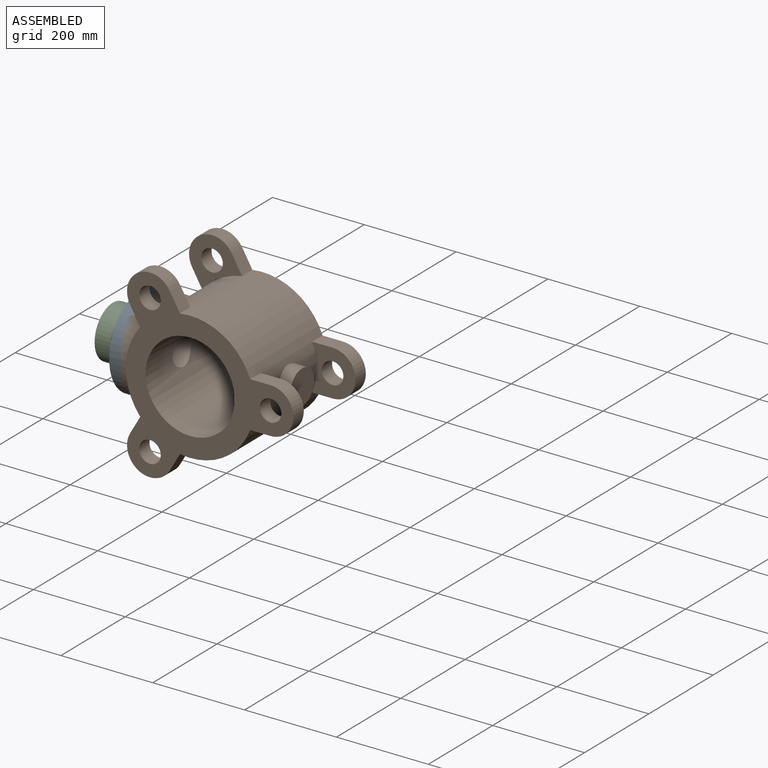
[diagram: assembled view]
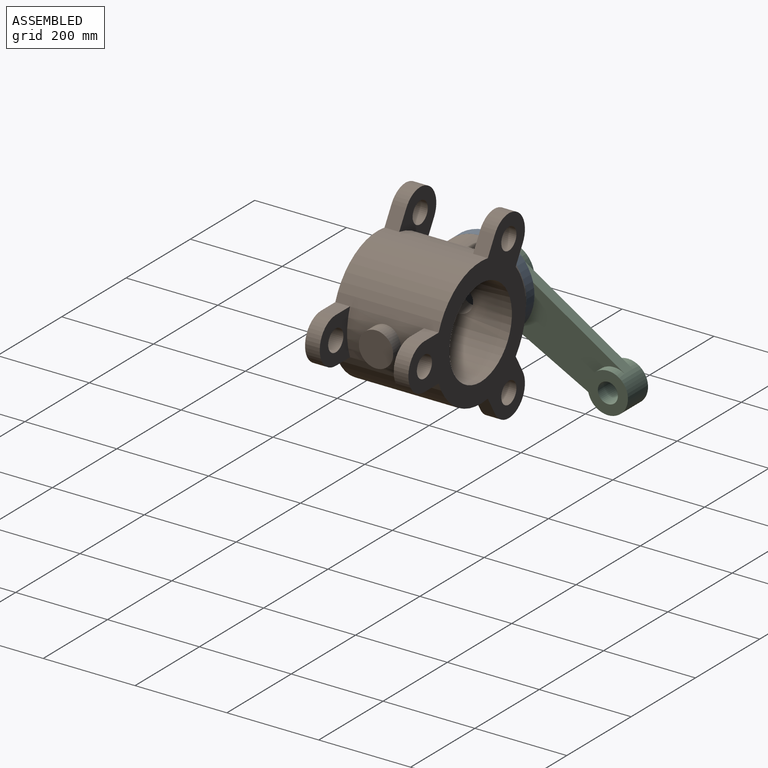
[diagram: assembled view, second angle]
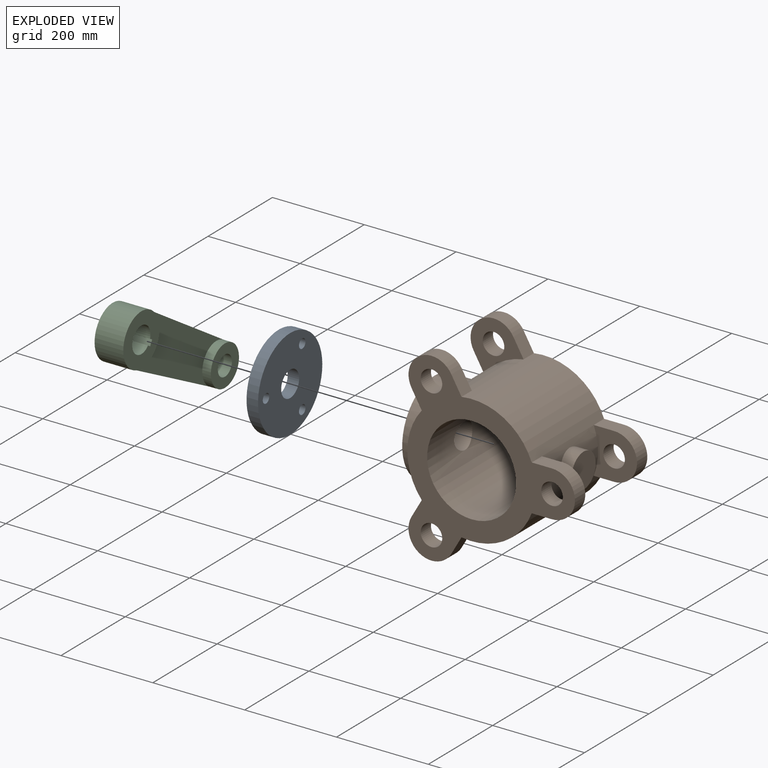
[diagram: exploded view]
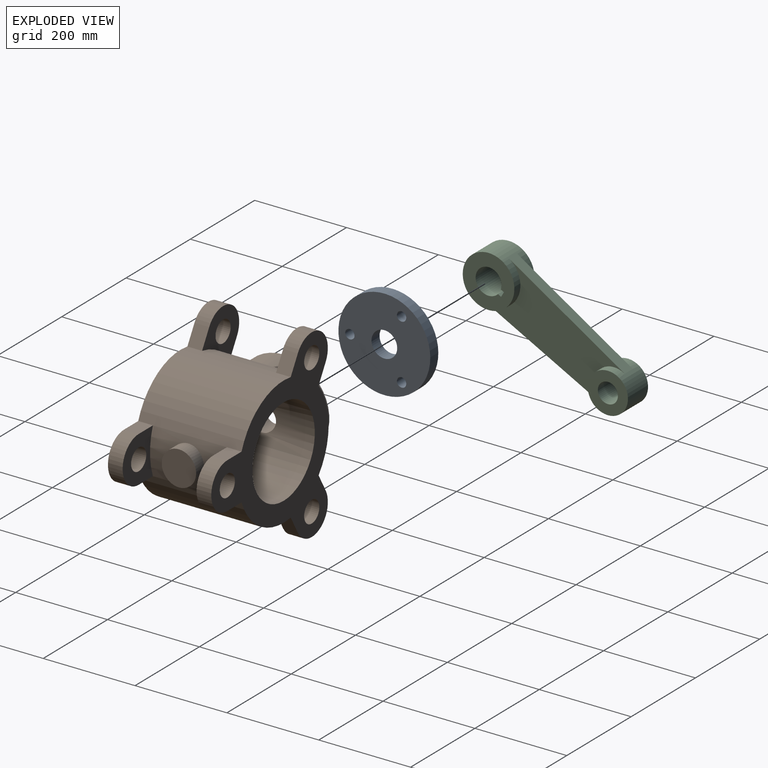
[diagram: exploded view, second angle]
ASSEMBLY  parts=3 mates=5
PART A: 7 faces, bbox 200x200x25 mm
  f0: cylinder r=28mm len=56mm, axis (0,0,-1), area 4398.2mm2, adj f5,f6
  f1: cylinder r=10.15mm len=25mm, axis (0,0,-1), area 1594.4mm2, adj f5,f6
  f2: cylinder r=10.15mm len=25mm, axis (0,0,-1), area 1594.4mm2, adj f5,f6
  f3: cylinder r=10.15mm len=25mm, axis (0,0,-1), area 1594.4mm2, adj f5,f6
  f4: cylinder r=100mm len=200mm, axis (0,0,-1), area 15708mm2, adj f5,f6
  f5: plane 200x200mm, normal (0,0,1), area 27982mm2, adj f0,f1,f2,f3,f4
  f6: plane 200x200mm, normal (0,0,-1), area 27982mm2, adj f0,f1,f2,f3,f4
PART B: 49 faces, bbox 385x225x403.1 mm
  f0: cylinder r=140mm len=280mm, axis (0,1,0), area 139899.5mm2, adj f2,f3,f4,f6,f7,f8,f10,f11
  f1: cylinder r=97mm len=225mm, axis (0,1,0), area 132109mm2, adj f2,f3,f46,f47
  f2: plane 403.11x365mm, normal (0,-1,0), area 50002.9mm2, adj f0,f1,f4,f5,f6,f8,f9,f10
  f3: plane 403.11x365mm, normal (0,1,0), area 50002.9mm2, adj f0,f1,f16,f17,f18,f20,f21,f22
  f4: plane 44.23x32mm, normal (0,0,-1), area 1415.5mm2, adj f0,f2,f5,f7
  f5: cylinder r=50mm len=100mm, axis (0,-1,0), area 5026.5mm2, adj f2,f4,f6,f7
  f6: plane 44.23x32mm, normal (0,0,1), area 1415.5mm2, adj f0,f2,f5,f7
  f7: plane 100x94.23mm, normal (0,1,0), area 5995.6mm2, adj f0,f4,f5,f6,f33
  f8: plane 38.31x32mm, normal (0.87,0,0.5), area 1415.5mm2, adj f0,f2,f9,f11
  f9: cylinder r=50mm len=93.3mm, axis (0,-1,0), area 5026.5mm2, adj f2,f8,f10,f11
  f10: plane 38.31x32mm, normal (-0.87,0,-0.5), area 1415.5mm2, adj f0,f2,f9,f11
  f11: plane 115.42x113.31mm, normal (0,1,0), area 5995.6mm2, adj f0,f8,f9,f10,f29
  f12: plane 38.31x32mm, normal (-0.87,0,0.5), area 1415.5mm2, adj f0,f2,f13,f15
  f13: cylinder r=50mm len=93.3mm, axis (0,-1,0), area 5026.5mm2, adj f2,f12,f14,f15
  f14: plane 38.31x32mm, normal (0.87,0,-0.5), area 1415.5mm2, adj f0,f2,f13,f15
  f15: plane 115.42x113.31mm, normal (0,1,0), area 5995.6mm2, adj f0,f12,f13,f14,f31
  f16: plane 44.23x32mm, normal (0,0,-1), area 1415.5mm2, adj f0,f3,f18,f19
  f17: plane 44.23x32mm, normal (0,0,1), area 1415.5mm2, adj f0,f3,f18,f19
  f18: cylinder r=50mm len=100mm, axis (0,1,0), area 5026.5mm2, adj f3,f16,f17,f19
  f19: plane 100x94.23mm, normal (0,-1,0), area 5995.6mm2, adj f0,f16,f17,f18,f32
  f20: plane 38.31x32mm, normal (0.87,0,0.5), area 1415.5mm2, adj f0,f3,f22,f23
  f21: plane 38.31x32mm, normal (-0.87,0,-0.5), area 1415.5mm2, adj f0,f3,f22,f23
  f22: cylinder r=50mm len=93.3mm, axis (0,1,0), area 5026.5mm2, adj f3,f20,f21,f23
  f23: plane 115.42x113.31mm, normal (0,-1,0), area 5995.6mm2, adj f0,f20,f21,f22,f28
  f24: plane 38.31x32mm, normal (-0.87,0,0.5), area 1415.5mm2, adj f0,f3,f26,f27
  f25: plane 38.31x32mm, normal (0.87,0,-0.5), area 1415.5mm2, adj f0,f3,f26,f27
  f26: cylinder r=50mm len=93.3mm, axis (0,1,0), area 5026.5mm2, adj f3,f24,f25,f27
  f27: plane 115.42x113.31mm, normal (0,-1,0), area 5995.6mm2, adj f0,f24,f25,f26,f30
  f28: cylinder r=23.5mm len=47mm, axis (0,-1,0), area 4725mm2, adj f3,f23
  f29: cylinder r=23.5mm len=47mm, axis (0,-1,0), area 4725mm2, adj f2,f11
  f30: cylinder r=23.5mm len=47mm, axis (0,-1,0), area 4725mm2, adj f3,f27
  f31: cylinder r=23.5mm len=47mm, axis (0,-1,0), area 4725mm2, adj f2,f15
  f32: cylinder r=23.5mm len=47mm, axis (0,-1,0), area 4725mm2, adj f3,f19
  f33: cylinder r=23.5mm len=47mm, axis (0,-1,0), area 4725mm2, adj f2,f7
  f34: plane 200x200mm, normal (-1,0,0), area 22591mm2, adj f35,f36,f40,f42,f44
  f35: cylinder r=100mm len=200mm, axis (-1,0,0), area 25196.9mm2, adj f0,f34
  f36: cylinder r=50mm len=100mm, axis (-1,0,0), area 7717.9mm2, adj f34,f37
  f37: cylinder r=140mm len=100.01mm, axis (0,1,0), area 5493.4mm2, adj f36,f46
  f38: plane 75x75mm, normal (1,0,0), area 4417.9mm2, adj f39
  f39: cylinder r=37.5mm len=75mm, axis (1,0,0), area 6490.9mm2, adj f0,f38
  f40: cylinder r=10.15mm len=20.3mm, axis (-1,0,0), area 956.6mm2, adj f34,f41
  f41: plane 20.3x20.3mm, normal (-1,0,0), area 323.7mm2, adj f40
  f42: cylinder r=10.15mm len=20.3mm, axis (-1,0,0), area 956.6mm2, adj f34,f43
  f43: plane 20.3x20.3mm, normal (-1,0,0), area 323.7mm2, adj f42
  f44: cylinder r=10.15mm len=20.3mm, axis (-1,0,0), area 956.6mm2, adj f34,f45
  f45: plane 20.3x20.3mm, normal (-1,0,0), area 323.7mm2, adj f44
  f46: cylinder r=28.1mm len=56.2mm, axis (-1,0,0), area 7706mm2, adj f1,f37
  f47: cylinder r=28.1mm len=57.16mm, axis (-1,0,0), area 9722.1mm2, adj f1,f48
  f48: plane 56.2x56.2mm, normal (-1,0,0), area 2480.6mm2, adj f47
PART C: 17 faces, bbox 400x112.5x62.5 mm
  f0: cylinder r=28.15mm len=62.5mm, axis (0,0,-1), area 10260.3mm2, adj f6,f7,f14,f16
  f1: cylinder r=56.25mm len=112.11mm, axis (0,0,-1), area 3138.2mm2, adj f3,f5,f7,f9
  f2: cylinder r=56.25mm len=112.11mm, axis (0,0,-1), area 3138.2mm2, adj f3,f5,f6,f8
  f3: plane 301.82x62.5mm, normal (0.04,1,0), area 7727mm2, adj f1,f2,f4,f6,f7,f8,f9,f11
  f4: cylinder r=56.25mm len=112.5mm, axis (0,0,-1), area 11044.7mm2, adj f3,f5,f6,f7
  f5: plane 301.82x62.5mm, normal (0.04,-1,0), area 7727mm2, adj f1,f2,f4,f6,f7,f8,f9,f11
  f6: plane 112.5x112.5mm, normal (0,0,1), area 7359.4mm2, adj f0,f2,f3,f4,f5,f14,f15,f16
  f7: plane 112.5x112.5mm, normal (0,0,-1), area 7359.4mm2, adj f0,f1,f3,f4,f5,f14,f15,f16
  f8: plane 297.15x112.11mm, normal (0,0,1), area 22035mm2, adj f2,f3,f5,f11
  f9: plane 297.15x112.11mm, normal (0,0,-1), area 22035mm2, adj f1,f3,f5,f11
  f10: cylinder r=21.9mm len=62.5mm, axis (0,0,-1), area 8600.1mm2, adj f12,f13
  f11: cylinder r=43.75mm len=87.5mm, axis (0,0,-1), area 13653.6mm2, adj f3,f5,f8,f9,f12,f13
  f12: plane 87.5x87.5mm, normal (0,0,1), area 4506.5mm2, adj f10,f11
  f13: plane 87.5x87.5mm, normal (0,0,-1), area 4506.5mm2, adj f10,f11
  f14: plane 62.5x7.7mm, normal (0,1,0), area 481.2mm2, adj f0,f6,f7,f15
  f15: plane 62.5x12.6mm, normal (-1,0,0), area 787.5mm2, adj f6,f7,f14,f16
  f16: plane 62.5x7.7mm, normal (0,-1,0), area 481.2mm2, adj f0,f6,f7,f15
PLACE A rot(axis=(-0.45,-0.77,0.45),104.5deg) t=(-160,0,0)mm
PLACE B at identity fixed
PLACE C rot(axis=(-0.65,-0.38,0.65),138.6deg) t=(-216.25,0,0)mm
MATE cylindrical B.f44 <-> A.f2  axis (-1,0,0) through (-145,-75,0)mm
MATE planar B.f35 <-> A.f0  axis (-1,0,0) through (-160,0,0)mm
MATE cylindrical C.f0 <-> A.f4  axis (1,0,0) through (-185,0,0)mm
MATE cylindrical A.f4 <-> B.f36  axis (1,0,0) through (-160,0,0)mm
MATE planar A.f4 <-> C.f0  axis (-1,0,0) through (-185,0,0)mm
